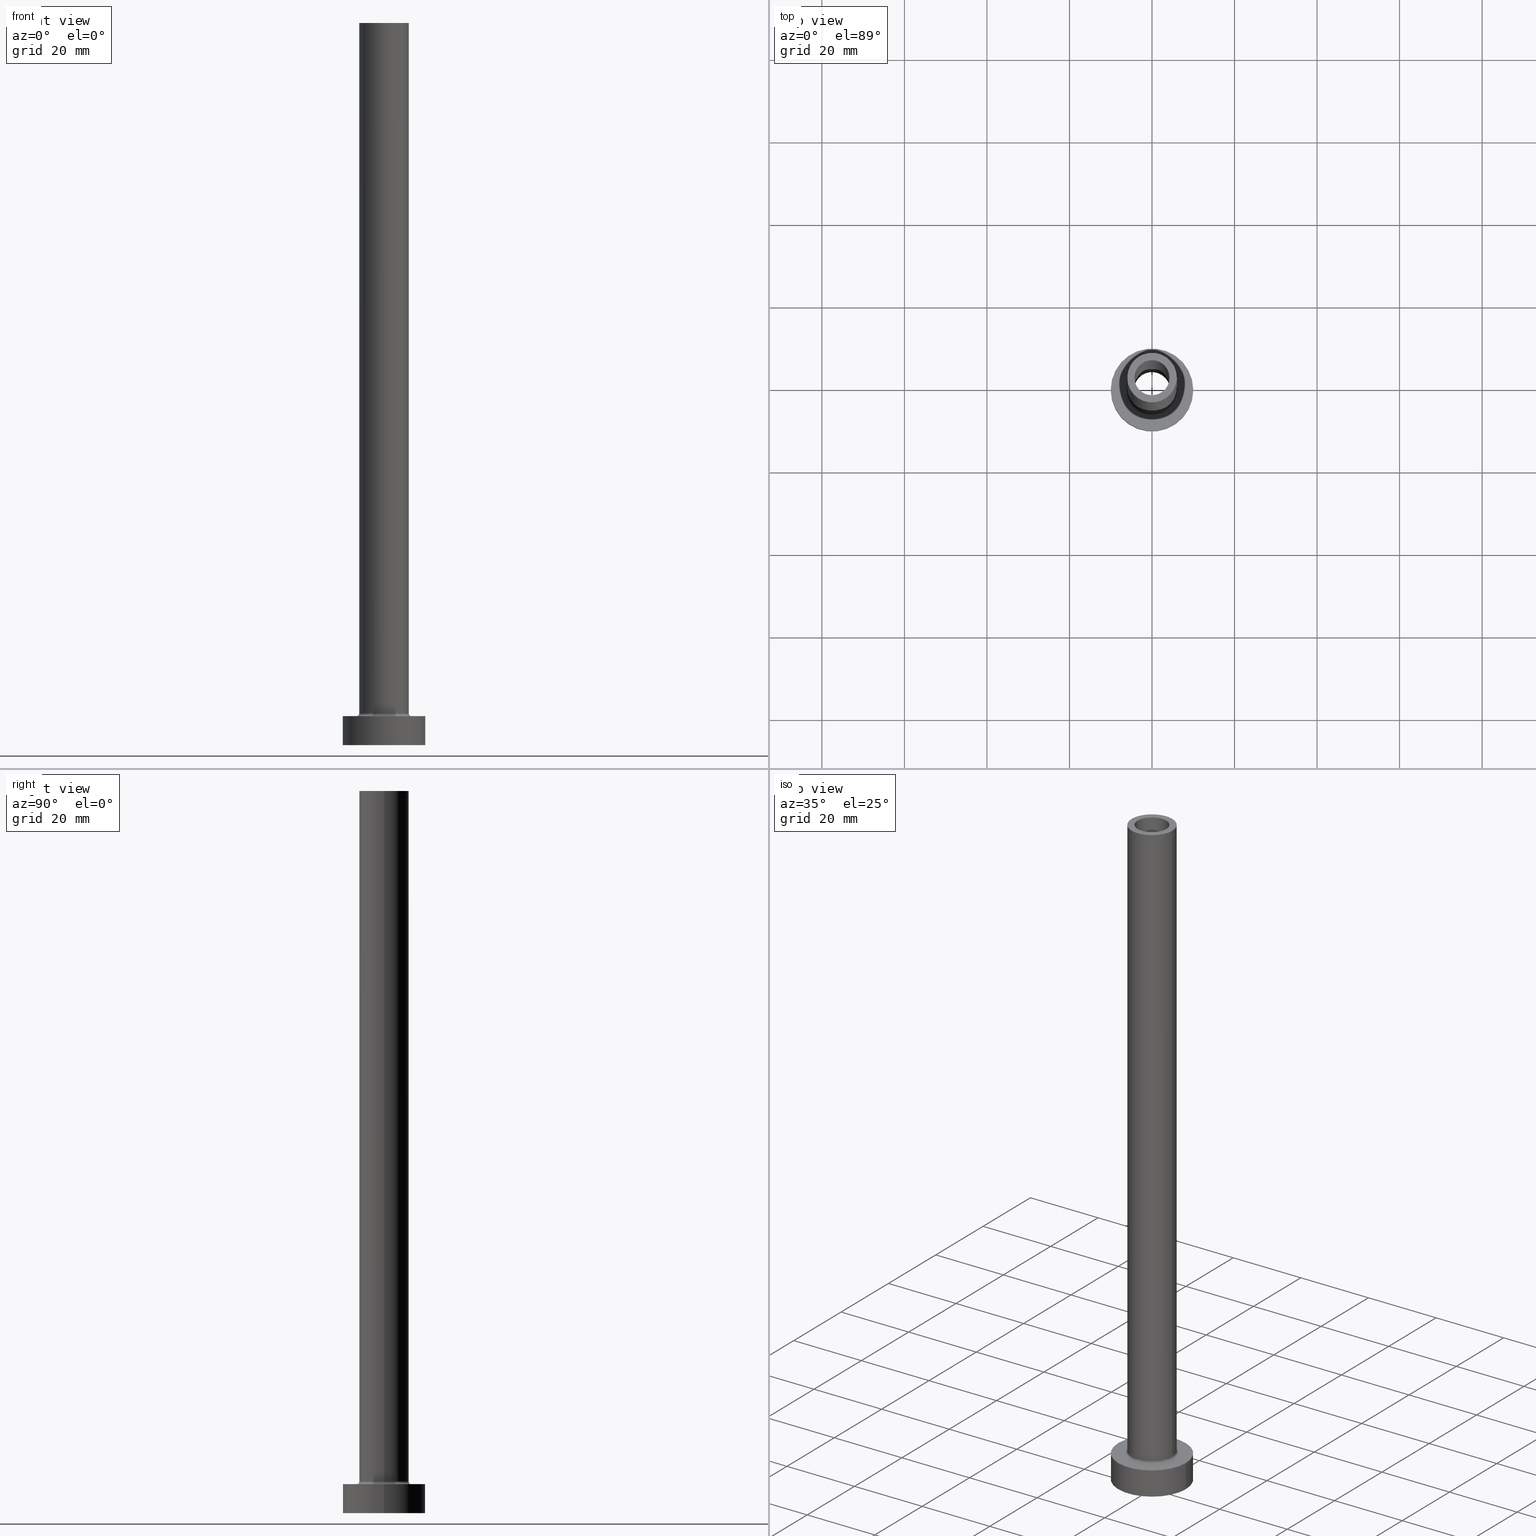
[diagram: canonical four-view strip — front | top / right | iso, engineering-drawing reading convention]
A machine part, canonical four-view strip (front | top / right | iso — engineering-drawing reading convention). The complete STEP part file that produces these views, byte-faithful:
ISO-10303-21;
HEADER;
FILE_DESCRIPTION (( 'STEP AP203' ),
    '1' );
FILE_NAME ('a372.STEP',
    '2023-02-13T11:58:05',
    ( '' ),
    ( '' ),
    'SwSTEP 2.0',
    'SolidWorks 2019',
    '' );
FILE_SCHEMA (( 'CONFIG_CONTROL_DESIGN' ));
ENDSEC;

DATA;
#1 = FACE_OUTER_BOUND ( 'NONE', #243, .T. ) ;
#2 = DIRECTION ( 'NONE',  ( 1.000000000000000000, 0.000000000000000000, 0.000000000000000000 ) ) ;
#3 = AXIS2_PLACEMENT_3D ( 'NONE', #280, #70, #314 ) ;
#4 = DIRECTION ( 'NONE',  ( 1.000000000000000000, 0.000000000000000000, -0.000000000000000000 ) ) ;
#5 = DIRECTION ( 'NONE',  ( 1.000000000000000000, 0.000000000000000000, 0.000000000000000000 ) ) ;
#6 = LOCAL_TIME ( 12, 58, 5.000000000000000000, #297 ) ;
#7 = CARTESIAN_POINT ( 'NONE',  ( -6.700000000000001066, 8.205133554287267548E-16, 7.000000000000006217 ) ) ;
#8 = LINE ( 'NONE', #156, #306 ) ;
#9 = AXIS2_PLACEMENT_3D ( 'NONE', #148, #425, #358 ) ;
#10 = CARTESIAN_POINT ( 'NONE',  ( 10.00000000000000000, 1.224646799147353256E-15, 7.000000000000000000 ) ) ;
#11 = AXIS2_PLACEMENT_3D ( 'NONE', #54, #368, #307 ) ;
#12 = EDGE_CURVE ( 'NONE', #376, #66, #420, .T. ) ;
#13 = CARTESIAN_POINT ( 'NONE',  ( 0.000000000000000000, 0.000000000000000000, 175.0000000000000284 ) ) ;
#14 = APPLICATION_PROTOCOL_DEFINITION ( 'international standard', 'config_control_design', 1994, #331 ) ;
#15 = AXIS2_PLACEMENT_3D ( 'NONE', #287, #321, #421 ) ;
#16 = CARTESIAN_POINT ( 'NONE',  ( 0.000000000000000000, 0.000000000000000000, 175.0000000000000284 ) ) ;
#17 = ORIENTED_EDGE ( 'NONE', *, *, #12, .F. ) ;
#18 = ORIENTED_EDGE ( 'NONE', *, *, #402, .T. ) ;
#19 = ORIENTED_EDGE ( 'NONE', *, *, #396, .F. ) ;
#20 = ORIENTED_EDGE ( 'NONE', *, *, #126, .F. ) ;
#21 = DATE_AND_TIME ( #302, #221 ) ;
#22 = ADVANCED_FACE ( 'NONE', ( #246 ), #68, .T. ) ;
#23 = EDGE_LOOP ( 'NONE', ( #230, #179 ) ) ;
#24 = ADVANCED_FACE ( 'NONE', ( #315 ), #111, .F. ) ;
#25 = EDGE_LOOP ( 'NONE', ( #378, #334, #232, #208 ) ) ;
#26 = EDGE_LOOP ( 'NONE', ( #443, #195, #106, #56 ) ) ;
#27 = DATE_AND_TIME ( #452, #185 ) ;
#28 = AXIS2_PLACEMENT_3D ( 'NONE', #337, #165, #298 ) ;
#29 = COORDINATED_UNIVERSAL_TIME_OFFSET ( 1, 0, .AHEAD. ) ;
#30 = ADVANCED_FACE ( 'NONE', ( #255, #77 ), #363, .T. ) ;
#31 = DATE_TIME_ROLE ( 'creation_date' ) ;
#32 = DIRECTION ( 'NONE',  ( -1.000000000000000000, 0.000000000000000000, 0.000000000000000000 ) ) ;
#33 = LOCAL_TIME ( 12, 58, 5.000000000000000000, #415 ) ;
#34 = AXIS2_PLACEMENT_3D ( 'NONE', #44, #153, #427 ) ;
#35 = ORIENTED_EDGE ( 'NONE', *, *, #430, .F. ) ;
#36 = DATE_TIME_ROLE ( 'classification_date' ) ;
#37 = AXIS2_PLACEMENT_3D ( 'NONE', #256, #110, #180 ) ;
#38 = CARTESIAN_POINT ( 'NONE',  ( -4.250000000000000000, 0.000000000000000000, 130.0000000000000000 ) ) ;
#39 = CARTESIAN_POINT ( 'NONE',  ( 0.000000000000000000, 0.000000000000000000, 7.700000000000012612 ) ) ;
#40 = DIRECTION ( 'NONE',  ( 1.224646799147353207E-16, 1.000000000000000000, -0.000000000000000000 ) ) ;
#41 = AXIS2_PLACEMENT_3D ( 'NONE', #39, #108, #47 ) ;
#42 = AXIS2_PLACEMENT_3D ( 'NONE', #190, #117, #4 ) ;
#43 = FACE_OUTER_BOUND ( 'NONE', #25, .T. ) ;
#44 = CARTESIAN_POINT ( 'NONE',  ( 6.700000000000001066, 0.000000000000000000, 7.700000000000012612 ) ) ;
#45 = CARTESIAN_POINT ( 'NONE',  ( 0.000000000000000000, 0.000000000000000000, 0.000000000000000000 ) ) ;
#46 =( NAMED_UNIT ( * ) PLANE_ANGLE_UNIT ( ) SI_UNIT ( $, .RADIAN. ) );
#47 = DIRECTION ( 'NONE',  ( 1.000000000000000000, 0.000000000000000000, 0.000000000000000000 ) ) ;
#48 = AXIS2_PLACEMENT_3D ( 'NONE', #225, #227, #326 ) ;
#49 = EDGE_CURVE ( 'NONE', #304, #55, #347, .T. ) ;
#50 = APPROVAL_STATUS ( 'not_yet_approved' ) ;
#51 = CIRCLE ( 'NONE', #28, 10.00000000000000000 ) ;
#52 = ORIENTED_EDGE ( 'NONE', *, *, #352, .T. ) ;
#53 = ORIENTED_EDGE ( 'NONE', *, *, #242, .F. ) ;
#54 = CARTESIAN_POINT ( 'NONE',  ( 0.000000000000000000, 0.000000000000000000, 175.0000000000000284 ) ) ;
#55 = VERTEX_POINT ( 'NONE', #222 ) ;
#56 = ORIENTED_EDGE ( 'NONE', *, *, #301, .F. ) ;
#57 = DIRECTION ( 'NONE',  ( -1.000000000000000000, 0.000000000000000000, 0.000000000000000000 ) ) ;
#58 = EDGE_CURVE ( 'NONE', #202, #345, #94, .T. ) ;
#59 = ORIENTED_EDGE ( 'NONE', *, *, #352, .F. ) ;
#60 = ADVANCED_FACE ( 'NONE', ( #323, #219 ), #146, .F. ) ;
#61 = ORIENTED_EDGE ( 'NONE', *, *, #58, .T. ) ;
#62 = PERSON_AND_ORGANIZATION ( #395, #199 ) ;
#63 = CC_DESIGN_DATE_AND_TIME_ASSIGNMENT ( #244, #31, ( #373 ) ) ;
#64 = ORIENTED_EDGE ( 'NONE', *, *, #237, .F. ) ;
#65 = DATE_AND_TIME ( #348, #33 ) ;
#66 = VERTEX_POINT ( 'NONE', #422 ) ;
#67 = APPROVAL_DATE_TIME ( #65, #183 ) ;
#68 = CYLINDRICAL_SURFACE ( 'NONE', #408, 10.00000000000000000 ) ;
#69 = ORIENTED_EDGE ( 'NONE', *, *, #418, .T. ) ;
#70 = DIRECTION ( 'NONE',  ( 0.000000000000000000, 0.000000000000000000, 1.000000000000000000 ) ) ;
#71 = ORIENTED_EDGE ( 'NONE', *, *, #264, .T. ) ;
#72 = CARTESIAN_POINT ( 'NONE',  ( 0.000000000000000000, 0.000000000000000000, 7.700000000000012612 ) ) ;
#73 = EDGE_LOOP ( 'NONE', ( #458, #414, #102, #305 ) ) ;
#74 = CARTESIAN_POINT ( 'NONE',  ( -10.00000000000000000, 0.000000000000000000, 0.000000000000000000 ) ) ;
#75 = CARTESIAN_POINT ( 'NONE',  ( 0.000000000000000000, 0.000000000000000000, 130.0000000000000000 ) ) ;
#76 = DIRECTION ( 'NONE',  ( 0.000000000000000000, 0.000000000000000000, 1.000000000000000000 ) ) ;
#77 = FACE_OUTER_BOUND ( 'NONE', #125, .T. ) ;
#78 = TOROIDAL_SURFACE ( 'NONE', #15, 6.700000000000001066, 0.6999999999999999556 ) ;
#79 = DIRECTION ( 'NONE',  ( 0.000000000000000000, 0.000000000000000000, 1.000000000000000000 ) ) ;
#80 = ADVANCED_FACE ( 'NONE', ( #292 ), #450, .F. ) ;
#81 = CARTESIAN_POINT ( 'NONE',  ( -10.00000000000000000, 0.000000000000000000, 7.000000000000000000 ) ) ;
#82 = DIRECTION ( 'NONE',  ( -0.000000000000000000, -0.000000000000000000, -1.000000000000000000 ) ) ;
#83 = CIRCLE ( 'NONE', #143, 4.400000000000000355 ) ;
#84 = CARTESIAN_POINT ( 'NONE',  ( -6.000000000000000888, 0.000000000000000000, 175.0000000000000284 ) ) ;
#85 = APPLICATION_PROTOCOL_DEFINITION ( 'international standard', 'config_control_design', 1994, #403 ) ;
#86 = DIRECTION ( 'NONE',  ( 0.000000000000000000, 0.000000000000000000, -1.000000000000000000 ) ) ;
#87 = ADVANCED_FACE ( 'NONE', ( #431 ), #460, .T. ) ;
#88 = CIRCLE ( 'NONE', #388, 4.400000000000000355 ) ;
#89 = ORIENTED_EDGE ( 'NONE', *, *, #390, .F. ) ;
#90 = ORIENTED_EDGE ( 'NONE', *, *, #317, .T. ) ;
#91 = DIRECTION ( 'NONE',  ( -0.000000000000000000, -0.000000000000000000, -1.000000000000000000 ) ) ;
#92 = VERTEX_POINT ( 'NONE', #397 ) ;
#93 = PERSON_AND_ORGANIZATION_ROLE ( 'design_owner' ) ;
#94 = CIRCLE ( 'NONE', #192, 4.400000000000000355 ) ;
#95 = VERTEX_POINT ( 'NONE', #81 ) ;
#96 = CARTESIAN_POINT ( 'NONE',  ( 0.000000000000000000, 0.000000000000000000, 0.000000000000000000 ) ) ;
#97 = AXIS2_PLACEMENT_3D ( 'NONE', #13, #229, #57 ) ;
#98 = VERTEX_POINT ( 'NONE', #398 ) ;
#99 = ORIENTED_EDGE ( 'NONE', *, *, #49, .F. ) ;
#100 = EDGE_CURVE ( 'NONE', #233, #92, #181, .T. ) ;
#101 = DIRECTION ( 'NONE',  ( 1.000000000000000000, 0.000000000000000000, 0.000000000000000000 ) ) ;
#102 = ORIENTED_EDGE ( 'NONE', *, *, #49, .T. ) ;
#103 = DIRECTION ( 'NONE',  ( 0.000000000000000000, 0.000000000000000000, -1.000000000000000000 ) ) ;
#104 = CIRCLE ( 'NONE', #364, 6.000000000000000888 ) ;
#105 = DIRECTION ( 'NONE',  ( 1.000000000000000000, 0.000000000000000000, 0.000000000000000000 ) ) ;
#106 = ORIENTED_EDGE ( 'NONE', *, *, #273, .T. ) ;
#107 = FACE_OUTER_BOUND ( 'NONE', #276, .T. ) ;
#108 = DIRECTION ( 'NONE',  ( 0.000000000000000000, 0.000000000000000000, 1.000000000000000000 ) ) ;
#109 = CIRCLE ( 'NONE', #426, 6.700000000000001066 ) ;
#110 = DIRECTION ( 'NONE',  ( 0.000000000000000000, 0.000000000000000000, 1.000000000000000000 ) ) ;
#111 = CYLINDRICAL_SURFACE ( 'NONE', #259, 4.400000000000000355 ) ;
#112 =( LENGTH_UNIT ( ) NAMED_UNIT ( * ) SI_UNIT ( .MILLI., .METRE. ) );
#113 = DIRECTION ( 'NONE',  ( -0.000000000000000000, -0.000000000000000000, -1.000000000000000000 ) ) ;
#114 = AXIS2_PLACEMENT_3D ( 'NONE', #459, #152, #318 ) ;
#115 = CARTESIAN_POINT ( 'NONE',  ( 0.000000000000000000, 0.000000000000000000, 0.000000000000000000 ) ) ;
#116 = EDGE_CURVE ( 'NONE', #120, #372, #215, .T. ) ;
#117 = DIRECTION ( 'NONE',  ( 0.000000000000000000, 0.000000000000000000, 1.000000000000000000 ) ) ;
#118 = CYLINDRICAL_SURFACE ( 'NONE', #97, 4.250000000000000000 ) ;
#119 = APPROVAL_PERSON_ORGANIZATION ( #62, #178, #262 ) ;
#120 = VERTEX_POINT ( 'NONE', #401 ) ;
#121 = ORIENTED_EDGE ( 'NONE', *, *, #286, .F. ) ;
#122 = AXIS2_PLACEMENT_3D ( 'NONE', #216, #40, #356 ) ;
#123 = DIRECTION ( 'NONE',  ( 0.000000000000000000, 0.000000000000000000, 1.000000000000000000 ) ) ;
#124 = AXIS2_PLACEMENT_3D ( 'NONE', #366, #123, #267 ) ;
#125 = EDGE_LOOP ( 'NONE', ( #346, #278 ) ) ;
#126 = EDGE_CURVE ( 'NONE', #345, #451, #8, .T. ) ;
#127 = ORIENTED_EDGE ( 'NONE', *, *, #390, .T. ) ;
#128 = CARTESIAN_POINT ( 'NONE',  ( 10.00000000000000000, 1.224646799147353256E-15, 7.000000000000000000 ) ) ;
#129 = UNCERTAINTY_MEASURE_WITH_UNIT (LENGTH_MEASURE( 1.000000000000000082E-05 ), #112, 'distance_accuracy_value', 'NONE');
#130 = ORIENTED_EDGE ( 'NONE', *, *, #439, .T. ) ;
#131 = ORIENTED_EDGE ( 'NONE', *, *, #193, .F. ) ;
#132 = CC_DESIGN_PERSON_AND_ORGANIZATION_ASSIGNMENT ( #411, #308, ( #235 ) ) ;
#133 = ORIENTED_EDGE ( 'NONE', *, *, #406, .T. ) ;
#134 = ORIENTED_EDGE ( 'NONE', *, *, #116, .T. ) ;
#135 = PERSON_AND_ORGANIZATION_ROLE ( 'creator' ) ;
#136 = DIRECTION ( 'NONE',  ( 1.000000000000000000, 0.000000000000000000, 0.000000000000000000 ) ) ;
#137 = ORIENTED_EDGE ( 'NONE', *, *, #198, .F. ) ;
#138 = APPROVAL_STATUS ( 'not_yet_approved' ) ;
#139 =( GEOMETRIC_REPRESENTATION_CONTEXT ( 3 ) GLOBAL_UNCERTAINTY_ASSIGNED_CONTEXT ( ( #129 ) ) GLOBAL_UNIT_ASSIGNED_CONTEXT ( ( #112, #46, #437 ) ) REPRESENTATION_CONTEXT ( 'NONE', 'WORKASPACE' ) );
#140 = SHAPE_DEFINITION_REPRESENTATION ( #355, #196 ) ;
#141 = ADVANCED_FACE ( 'NONE', ( #433 ), #118, .F. ) ;
#142 = DIRECTION ( 'NONE',  ( 0.000000000000000000, 0.000000000000000000, 1.000000000000000000 ) ) ;
#143 = AXIS2_PLACEMENT_3D ( 'NONE', #240, #253, #105 ) ;
#144 = PRODUCT ( 'a372', 'a372', '', ( #367 ) ) ;
#145 = LINE ( 'NONE', #218, #239 ) ;
#146 = PLANE ( 'NONE',  #42 ) ;
#147 = AXIS2_PLACEMENT_3D ( 'NONE', #164, #268, #168 ) ;
#148 = CARTESIAN_POINT ( 'NONE',  ( 0.000000000000000000, 0.000000000000000000, 175.0000000000000284 ) ) ;
#149 = CIRCLE ( 'NONE', #384, 4.250000000000000000 ) ;
#150 = CARTESIAN_POINT ( 'NONE',  ( -4.250000000000000000, 0.000000000000000000, 175.0000000000000284 ) ) ;
#151 = CARTESIAN_POINT ( 'NONE',  ( 0.000000000000000000, 0.000000000000000000, 142.4450793488832403 ) ) ;
#152 = DIRECTION ( 'NONE',  ( -0.000000000000000000, -0.000000000000000000, -1.000000000000000000 ) ) ;
#153 = DIRECTION ( 'NONE',  ( 0.000000000000000000, -1.000000000000000000, 0.000000000000000000 ) ) ;
#154 = DIRECTION ( 'NONE',  ( 1.000000000000000000, 0.000000000000000000, -0.000000000000000000 ) ) ;
#155 = ADVANCED_FACE ( 'NONE', ( #231 ), #374, .T. ) ;
#156 = CARTESIAN_POINT ( 'NONE',  ( -4.400000000000000355, 0.000000000000000000, 142.4450793488832403 ) ) ;
#157 = VECTOR ( 'NONE', #201, 1000.000000000000000 ) ;
#158 = PERSON_AND_ORGANIZATION_ROLE ( 'creator' ) ;
#159 = DIRECTION ( 'NONE',  ( 1.000000000000000000, 0.000000000000000000, 0.000000000000000000 ) ) ;
#160 = ORIENTED_EDGE ( 'NONE', *, *, #402, .F. ) ;
#161 = CC_DESIGN_PERSON_AND_ORGANIZATION_ASSIGNMENT ( #328, #158, ( #373 ) ) ;
#162 = ORIENTED_EDGE ( 'NONE', *, *, #126, .T. ) ;
#163 = CIRCLE ( 'NONE', #37, 6.000000000000000888 ) ;
#164 = CARTESIAN_POINT ( 'NONE',  ( 0.000000000000000000, 0.000000000000000000, 0.000000000000000000 ) ) ;
#165 = DIRECTION ( 'NONE',  ( 0.000000000000000000, 0.000000000000000000, 1.000000000000000000 ) ) ;
#166 = VERTEX_POINT ( 'NONE', #303 ) ;
#167 = EDGE_LOOP ( 'NONE', ( #447, #64, #209, #18 ) ) ;
#168 = DIRECTION ( 'NONE',  ( 1.000000000000000000, 0.000000000000000000, 0.000000000000000000 ) ) ;
#169 = CARTESIAN_POINT ( 'NONE',  ( 6.000000000000000888, 7.347880794884119736E-16, 175.0000000000000284 ) ) ;
#170 = VERTEX_POINT ( 'NONE', #10 ) ;
#171 = EDGE_CURVE ( 'NONE', #66, #166, #332, .T. ) ;
#172 = CARTESIAN_POINT ( 'NONE',  ( 0.000000000000000000, 0.000000000000000000, 7.000000000000000000 ) ) ;
#173 = AXIS2_PLACEMENT_3D ( 'NONE', #96, #309, #159 ) ;
#174 = CALENDAR_DATE ( 2023, 13, 2 ) ;
#175 = DIRECTION ( 'NONE',  ( 1.000000000000000000, 0.000000000000000000, 0.000000000000000000 ) ) ;
#176 = DESIGN_CONTEXT ( 'detailed design', #331, 'design' ) ;
#177 = EDGE_CURVE ( 'NONE', #202, #336, #409, .T. ) ;
#178 = APPROVAL ( #50, 'NEUR�EN�' ) ;
#179 = ORIENTED_EDGE ( 'NONE', *, *, #301, .T. ) ;
#180 = DIRECTION ( 'NONE',  ( 1.000000000000000000, 0.000000000000000000, 0.000000000000000000 ) ) ;
#181 = LINE ( 'NONE', #84, #417 ) ;
#182 = FACE_OUTER_BOUND ( 'NONE', #310, .T. ) ;
#183 = APPROVAL ( #138, 'NEUR�EN�' ) ;
#184 = DIRECTION ( 'NONE',  ( 1.000000000000000000, 0.000000000000000000, -0.000000000000000000 ) ) ;
#185 = LOCAL_TIME ( 12, 58, 5.000000000000000000, #381 ) ;
#186 = DIRECTION ( 'NONE',  ( 0.000000000000000000, 0.000000000000000000, 1.000000000000000000 ) ) ;
#187 = DIRECTION ( 'NONE',  ( 0.000000000000000000, 0.000000000000000000, 1.000000000000000000 ) ) ;
#188 = VECTOR ( 'NONE', #274, 1000.000000000000000 ) ;
#189 = CYLINDRICAL_SURFACE ( 'NONE', #9, 4.250000000000000000 ) ;
#190 = CARTESIAN_POINT ( 'NONE',  ( 0.000000000000000000, 0.000000000000000000, 130.0000000000000000 ) ) ;
#191 = CARTESIAN_POINT ( 'NONE',  ( 0.000000000000000000, 0.000000000000000000, 175.0000000000000284 ) ) ;
#192 = AXIS2_PLACEMENT_3D ( 'NONE', #75, #187, #288 ) ;
#193 = EDGE_CURVE ( 'NONE', #66, #376, #217, .T. ) ;
#194 = DIRECTION ( 'NONE',  ( 0.000000000000000000, 0.000000000000000000, -1.000000000000000000 ) ) ;
#195 = ORIENTED_EDGE ( 'NONE', *, *, #193, .T. ) ;
#196 = ADVANCED_BREP_SHAPE_REPRESENTATION ( 'a372', ( #295, #147 ), #139 ) ;
#197 = ORIENTED_EDGE ( 'NONE', *, *, #58, .F. ) ;
#198 = EDGE_CURVE ( 'NONE', #451, #336, #330, .T. ) ;
#199 = ORGANIZATION ( 'NEUR�EN�', 'NEUR�EN�', '' ) ;
#200 = EDGE_LOOP ( 'NONE', ( #440, #312, #90, #371 ) ) ;
#201 = DIRECTION ( 'NONE',  ( 0.000000000000000000, 0.000000000000000000, -1.000000000000000000 ) ) ;
#202 = VERTEX_POINT ( 'NONE', #236 ) ;
#203 = ORIENTED_EDGE ( 'NONE', *, *, #116, .F. ) ;
#204 = AXIS2_PLACEMENT_3D ( 'NONE', #45, #76, #325 ) ;
#205 = CARTESIAN_POINT ( 'NONE',  ( 4.250000000000000000, 5.204748896376250699E-16, 175.0000000000000284 ) ) ;
#206 = EDGE_LOOP ( 'NONE', ( #386, #61, #162, #344 ) ) ;
#207 = SECURITY_CLASSIFICATION_LEVEL ( 'unclassified' ) ;
#208 = ORIENTED_EDGE ( 'NONE', *, *, #273, .F. ) ;
#209 = ORIENTED_EDGE ( 'NONE', *, *, #100, .T. ) ;
#210 = CC_DESIGN_PERSON_AND_ORGANIZATION_ASSIGNMENT ( #279, #272, ( #263 ) ) ;
#211 = DIRECTION ( 'NONE',  ( 0.000000000000000000, 0.000000000000000000, 1.000000000000000000 ) ) ;
#212 = APPROVAL_STATUS ( 'not_yet_approved' ) ;
#213 = CIRCLE ( 'NONE', #3, 4.250000000000000000 ) ;
#214 = DIRECTION ( 'NONE',  ( -1.000000000000000000, 0.000000000000000000, 0.000000000000000000 ) ) ;
#215 = CIRCLE ( 'NONE', #48, 10.00000000000000000 ) ;
#216 = CARTESIAN_POINT ( 'NONE',  ( -6.700000000000001066, 8.205133554287267548E-16, 7.700000000000012612 ) ) ;
#217 = CIRCLE ( 'NONE', #277, 4.250000000000000000 ) ;
#218 = CARTESIAN_POINT ( 'NONE',  ( -10.00000000000000000, 0.000000000000000000, 7.000000000000000000 ) ) ;
#219 = FACE_OUTER_BOUND ( 'NONE', #438, .T. ) ;
#220 = DIRECTION ( 'NONE',  ( 0.000000000000000000, 0.000000000000000000, 1.000000000000000000 ) ) ;
#221 = LOCAL_TIME ( 12, 58, 5.000000000000000000, #342 ) ;
#222 = CARTESIAN_POINT ( 'NONE',  ( 6.700000000000001066, 0.000000000000000000, 7.000000000000006217 ) ) ;
#223 = FACE_BOUND ( 'NONE', #249, .T. ) ;
#224 = VECTOR ( 'NONE', #103, 1000.000000000000000 ) ;
#225 = CARTESIAN_POINT ( 'NONE',  ( 0.000000000000000000, 0.000000000000000000, 0.000000000000000000 ) ) ;
#226 = PERSON_AND_ORGANIZATION ( #395, #199 ) ;
#227 = DIRECTION ( 'NONE',  ( 0.000000000000000000, 0.000000000000000000, 1.000000000000000000 ) ) ;
#228 = AXIS2_PLACEMENT_3D ( 'NONE', #361, #394, #184 ) ;
#229 = DIRECTION ( 'NONE',  ( 0.000000000000000000, 0.000000000000000000, -1.000000000000000000 ) ) ;
#230 = ORIENTED_EDGE ( 'NONE', *, *, #266, .T. ) ;
#231 = FACE_OUTER_BOUND ( 'NONE', #200, .T. ) ;
#232 = ORIENTED_EDGE ( 'NONE', *, *, #266, .F. ) ;
#233 = VERTEX_POINT ( 'NONE', #343 ) ;
#234 = ORIENTED_EDGE ( 'NONE', *, *, #177, .T. ) ;
#235 = PRODUCT_DEFINITION_FORMATION_WITH_SPECIFIED_SOURCE ( 'LIBOVOLN�', '', #144, .NOT_KNOWN. ) ;
#236 = CARTESIAN_POINT ( 'NONE',  ( 4.400000000000000355, 5.388445916248354013E-16, 130.0000000000000000 ) ) ;
#237 = EDGE_CURVE ( 'NONE', #233, #98, #351, .T. ) ;
#238 = EDGE_CURVE ( 'NONE', #98, #304, #407, .T. ) ;
#239 = VECTOR ( 'NONE', #365, 1000.000000000000000 ) ;
#240 = CARTESIAN_POINT ( 'NONE',  ( 0.000000000000000000, 0.000000000000000000, 130.0000000000000000 ) ) ;
#241 = EDGE_LOOP ( 'NONE', ( #19, #445, #134, #89 ) ) ;
#242 = EDGE_CURVE ( 'NONE', #95, #170, #51, .T. ) ;
#243 = EDGE_LOOP ( 'NONE', ( #405, #53, #127, #130 ) ) ;
#244 = DATE_AND_TIME ( #434, #6 ) ;
#245 = FACE_OUTER_BOUND ( 'NONE', #206, .T. ) ;
#246 = FACE_OUTER_BOUND ( 'NONE', #241, .T. ) ;
#247 = EDGE_CURVE ( 'NONE', #170, #120, #449, .T. ) ;
#248 = CYLINDRICAL_SURFACE ( 'NONE', #341, 4.400000000000000355 ) ;
#249 = EDGE_LOOP ( 'NONE', ( #17, #131 ) ) ;
#250 = CARTESIAN_POINT ( 'NONE',  ( 0.000000000000000000, 0.000000000000000000, 7.000000000000000000 ) ) ;
#251 = CARTESIAN_POINT ( 'NONE',  ( 0.000000000000000000, 0.000000000000000000, 7.000000000000000000 ) ) ;
#252 = CC_DESIGN_DATE_AND_TIME_ASSIGNMENT ( #27, #36, ( #263 ) ) ;
#253 = DIRECTION ( 'NONE',  ( 0.000000000000000000, 0.000000000000000000, 1.000000000000000000 ) ) ;
#254 = CIRCLE ( 'NONE', #290, 6.000000000000000888 ) ;
#255 = FACE_BOUND ( 'NONE', #275, .T. ) ;
#256 = CARTESIAN_POINT ( 'NONE',  ( 0.000000000000000000, 0.000000000000000000, 175.0000000000000284 ) ) ;
#257 = DIRECTION ( 'NONE',  ( -1.000000000000000000, 0.000000000000000000, 0.000000000000000000 ) ) ;
#258 = DIRECTION ( 'NONE',  ( -1.000000000000000000, 0.000000000000000000, 0.000000000000000000 ) ) ;
#259 = AXIS2_PLACEMENT_3D ( 'NONE', #151, #86, #257 ) ;
#260 = CARTESIAN_POINT ( 'NONE',  ( -4.400000000000000355, 0.000000000000000000, 0.000000000000000000 ) ) ;
#261 = DIRECTION ( 'NONE',  ( -0.000000000000000000, -0.000000000000000000, -1.000000000000000000 ) ) ;
#262 = APPROVAL_ROLE ( '' ) ;
#263 = SECURITY_CLASSIFICATION ( '', '', #207 ) ;
#264 = EDGE_CURVE ( 'NONE', #369, #55, #109, .T. ) ;
#265 = ORIENTED_EDGE ( 'NONE', *, *, #430, .T. ) ;
#266 = EDGE_CURVE ( 'NONE', #410, #166, #149, .T. ) ;
#267 = DIRECTION ( 'NONE',  ( 1.000000000000000000, 0.000000000000000000, 0.000000000000000000 ) ) ;
#268 = DIRECTION ( 'NONE',  ( 0.000000000000000000, 0.000000000000000000, 1.000000000000000000 ) ) ;
#269 = DIRECTION ( 'NONE',  ( 1.000000000000000000, 0.000000000000000000, 0.000000000000000000 ) ) ;
#270 = APPROVAL_PERSON_ORGANIZATION ( #457, #183, #313 ) ;
#271 = AXIS2_PLACEMENT_3D ( 'NONE', #316, #142, #455 ) ;
#272 = PERSON_AND_ORGANIZATION_ROLE ( 'classification_officer' ) ;
#273 = EDGE_CURVE ( 'NONE', #376, #410, #349, .T. ) ;
#274 = DIRECTION ( 'NONE',  ( -0.000000000000000000, -0.000000000000000000, -1.000000000000000000 ) ) ;
#275 = EDGE_LOOP ( 'NONE', ( #436, #71 ) ) ;
#276 = EDGE_LOOP ( 'NONE', ( #338, #69 ) ) ;
#277 = AXIS2_PLACEMENT_3D ( 'NONE', #16, #442, #269 ) ;
#278 = ORIENTED_EDGE ( 'NONE', *, *, #396, .T. ) ;
#279 = PERSON_AND_ORGANIZATION ( #395, #199 ) ;
#280 = CARTESIAN_POINT ( 'NONE',  ( 0.000000000000000000, 0.000000000000000000, 130.0000000000000000 ) ) ;
#281 = CC_DESIGN_PERSON_AND_ORGANIZATION_ASSIGNMENT ( #283, #135, ( #235 ) ) ;
#282 = APPROVAL_PERSON_ORGANIZATION ( #377, #293, #350 ) ;
#283 = PERSON_AND_ORGANIZATION ( #395, #199 ) ;
#284 = DIRECTION ( 'NONE',  ( 0.000000000000000000, 0.000000000000000000, 1.000000000000000000 ) ) ;
#285 = CARTESIAN_POINT ( 'NONE',  ( 4.400000000000000355, 5.388445916248354013E-16, 0.000000000000000000 ) ) ;
#286 = EDGE_CURVE ( 'NONE', #55, #369, #404, .T. ) ;
#287 = CARTESIAN_POINT ( 'NONE',  ( 0.000000000000000000, 0.000000000000000000, 7.700000000000012612 ) ) ;
#288 = DIRECTION ( 'NONE',  ( 1.000000000000000000, 0.000000000000000000, 0.000000000000000000 ) ) ;
#289 = CYLINDRICAL_SURFACE ( 'NONE', #114, 10.00000000000000000 ) ;
#290 = AXIS2_PLACEMENT_3D ( 'NONE', #72, #324, #5 ) ;
#291 = PLANE ( 'NONE',  #400 ) ;
#292 = FACE_OUTER_BOUND ( 'NONE', #73, .T. ) ;
#293 = APPROVAL ( #212, 'NEUR�EN�' ) ;
#294 = CARTESIAN_POINT ( 'NONE',  ( 0.000000000000000000, 0.000000000000000000, 0.000000000000000000 ) ) ;
#295 = MANIFOLD_SOLID_BREP ( 'Odebrat vysunut�m4', #335 ) ;
#296 = DIRECTION ( 'NONE',  ( 0.000000000000000000, 0.000000000000000000, -1.000000000000000000 ) ) ;
#297 = COORDINATED_UNIVERSAL_TIME_OFFSET ( 1, 0, .AHEAD. ) ;
#298 = DIRECTION ( 'NONE',  ( 1.000000000000000000, 0.000000000000000000, 0.000000000000000000 ) ) ;
#299 = CARTESIAN_POINT ( 'NONE',  ( 4.400000000000000355, 5.388445916248354013E-16, 142.4450793488832403 ) ) ;
#300 = CIRCLE ( 'NONE', #375, 10.00000000000000000 ) ;
#301 = EDGE_CURVE ( 'NONE', #166, #410, #213, .T. ) ;
#302 = CALENDAR_DATE ( 2023, 13, 2 ) ;
#303 = CARTESIAN_POINT ( 'NONE',  ( 4.250000000000000000, 5.204748896376250699E-16, 130.0000000000000000 ) ) ;
#304 = VERTEX_POINT ( 'NONE', #456 ) ;
#305 = ORIENTED_EDGE ( 'NONE', *, *, #264, .F. ) ;
#306 = VECTOR ( 'NONE', #296, 1000.000000000000000 ) ;
#307 = DIRECTION ( 'NONE',  ( -1.000000000000000000, 0.000000000000000000, 0.000000000000000000 ) ) ;
#308 = PERSON_AND_ORGANIZATION_ROLE ( 'design_supplier' ) ;
#309 = DIRECTION ( 'NONE',  ( -0.000000000000000000, -0.000000000000000000, -1.000000000000000000 ) ) ;
#310 = EDGE_LOOP ( 'NONE', ( #160, #133, #121, #99 ) ) ;
#311 = PRODUCT_RELATED_PRODUCT_CATEGORY ( 'detail', '', ( #144 ) ) ;
#312 = ORIENTED_EDGE ( 'NONE', *, *, #238, .T. ) ;
#313 = APPROVAL_ROLE ( '' ) ;
#314 = DIRECTION ( 'NONE',  ( 1.000000000000000000, 0.000000000000000000, 0.000000000000000000 ) ) ;
#315 = FACE_OUTER_BOUND ( 'NONE', #340, .T. ) ;
#316 = CARTESIAN_POINT ( 'NONE',  ( 0.000000000000000000, 0.000000000000000000, 175.0000000000000284 ) ) ;
#317 = EDGE_CURVE ( 'NONE', #304, #92, #104, .T. ) ;
#318 = DIRECTION ( 'NONE',  ( -1.000000000000000000, 0.000000000000000000, 0.000000000000000000 ) ) ;
#319 = LOCAL_TIME ( 12, 58, 5.000000000000000000, #29 ) ;
#320 = FACE_BOUND ( 'NONE', #379, .T. ) ;
#321 = DIRECTION ( 'NONE',  ( 0.000000000000000000, 0.000000000000000000, 1.000000000000000000 ) ) ;
#322 = CIRCLE ( 'NONE', #122, 0.7000000000000000666 ) ;
#323 = FACE_BOUND ( 'NONE', #23, .T. ) ;
#324 = DIRECTION ( 'NONE',  ( 0.000000000000000000, 0.000000000000000000, 1.000000000000000000 ) ) ;
#325 = DIRECTION ( 'NONE',  ( 1.000000000000000000, 0.000000000000000000, -0.000000000000000000 ) ) ;
#326 = DIRECTION ( 'NONE',  ( 1.000000000000000000, 0.000000000000000000, 0.000000000000000000 ) ) ;
#327 = ADVANCED_FACE ( 'NONE', ( #245 ), #248, .F. ) ;
#328 = PERSON_AND_ORGANIZATION ( #395, #199 ) ;
#329 = CARTESIAN_POINT ( 'NONE',  ( 0.000000000000000000, 0.000000000000000000, 7.000000000000000000 ) ) ;
#330 = CIRCLE ( 'NONE', #173, 4.400000000000000355 ) ;
#331 = APPLICATION_CONTEXT ( 'configuration controlled 3d designs of mechanical parts and assemblies' ) ;
#332 = LINE ( 'NONE', #205, #157 ) ;
#333 = CC_DESIGN_APPROVAL ( #293, ( #263 ) ) ;
#334 = ORIENTED_EDGE ( 'NONE', *, *, #171, .T. ) ;
#335 = CLOSED_SHELL ( 'NONE', ( #399, #24, #432, #155, #22, #423, #30, #370, #87, #360, #80, #327, #60, #141 ) ) ;
#336 = VERTEX_POINT ( 'NONE', #285 ) ;
#337 = CARTESIAN_POINT ( 'NONE',  ( 0.000000000000000000, 0.000000000000000000, 7.000000000000000000 ) ) ;
#338 = ORIENTED_EDGE ( 'NONE', *, *, #237, .T. ) ;
#339 = CC_DESIGN_PERSON_AND_ORGANIZATION_ASSIGNMENT ( #226, #93, ( #144 ) ) ;
#340 = EDGE_LOOP ( 'NONE', ( #52, #234, #265, #20 ) ) ;
#341 = AXIS2_PLACEMENT_3D ( 'NONE', #353, #385, #32 ) ;
#342 = COORDINATED_UNIVERSAL_TIME_OFFSET ( 1, 0, .AHEAD. ) ;
#343 = CARTESIAN_POINT ( 'NONE',  ( -6.000000000000000888, 0.000000000000000000, 175.0000000000000284 ) ) ;
#344 = ORIENTED_EDGE ( 'NONE', *, *, #198, .T. ) ;
#345 = VERTEX_POINT ( 'NONE', #419 ) ;
#346 = ORIENTED_EDGE ( 'NONE', *, *, #242, .T. ) ;
#347 = CIRCLE ( 'NONE', #34, 0.7000000000000000666 ) ;
#348 = CALENDAR_DATE ( 2023, 13, 2 ) ;
#349 = LINE ( 'NONE', #382, #224 ) ;
#350 = APPROVAL_ROLE ( '' ) ;
#351 = CIRCLE ( 'NONE', #124, 6.000000000000000888 ) ;
#352 = EDGE_CURVE ( 'NONE', #345, #202, #83, .T. ) ;
#353 = CARTESIAN_POINT ( 'NONE',  ( 0.000000000000000000, 0.000000000000000000, 142.4450793488832403 ) ) ;
#354 = AXIS2_PLACEMENT_3D ( 'NONE', #191, #113, #258 ) ;
#355 = PRODUCT_DEFINITION_SHAPE ( 'NONE', 'NONE',  #373 ) ;
#356 = DIRECTION ( 'NONE',  ( -1.000000000000000000, 1.224646799147353454E-16, 0.000000000000000000 ) ) ;
#357 = VECTOR ( 'NONE', #194, 1000.000000000000000 ) ;
#358 = DIRECTION ( 'NONE',  ( -1.000000000000000000, 0.000000000000000000, 0.000000000000000000 ) ) ;
#359 = PLANE ( 'NONE',  #204 ) ;
#360 = ADVANCED_FACE ( 'NONE', ( #223, #107 ), #291, .T. ) ;
#361 = CARTESIAN_POINT ( 'NONE',  ( 0.000000000000000000, 0.000000000000000000, 7.000000000000000000 ) ) ;
#362 = DIRECTION ( 'NONE',  ( 1.000000000000000000, 0.000000000000000000, 0.000000000000000000 ) ) ;
#363 = PLANE ( 'NONE',  #228 ) ;
#364 = AXIS2_PLACEMENT_3D ( 'NONE', #416, #284, #101 ) ;
#365 = DIRECTION ( 'NONE',  ( -0.000000000000000000, -0.000000000000000000, -1.000000000000000000 ) ) ;
#366 = CARTESIAN_POINT ( 'NONE',  ( 0.000000000000000000, 0.000000000000000000, 175.0000000000000284 ) ) ;
#367 = MECHANICAL_CONTEXT ( 'NONE', #403, 'mechanical' ) ;
#368 = DIRECTION ( 'NONE',  ( -0.000000000000000000, -0.000000000000000000, -1.000000000000000000 ) ) ;
#369 = VERTEX_POINT ( 'NONE', #7 ) ;
#370 = ADVANCED_FACE ( 'NONE', ( #320, #389 ), #359, .F. ) ;
#371 = ORIENTED_EDGE ( 'NONE', *, *, #100, .F. ) ;
#372 = VERTEX_POINT ( 'NONE', #74 ) ;
#373 = PRODUCT_DEFINITION ( 'NEZN�M�', '', #235, #176 ) ;
#374 = CYLINDRICAL_SURFACE ( 'NONE', #11, 6.000000000000000888 ) ;
#375 = AXIS2_PLACEMENT_3D ( 'NONE', #115, #186, #2 ) ;
#376 = VERTEX_POINT ( 'NONE', #150 ) ;
#377 = PERSON_AND_ORGANIZATION ( #395, #199 ) ;
#378 = ORIENTED_EDGE ( 'NONE', *, *, #12, .T. ) ;
#379 = EDGE_LOOP ( 'NONE', ( #137, #35 ) ) ;
#380 = CC_DESIGN_SECURITY_CLASSIFICATION ( #263, ( #235 ) ) ;
#381 = COORDINATED_UNIVERSAL_TIME_OFFSET ( 1, 0, .AHEAD. ) ;
#382 = CARTESIAN_POINT ( 'NONE',  ( -4.250000000000000000, 0.000000000000000000, 175.0000000000000284 ) ) ;
#383 = DATE_AND_TIME ( #174, #319 ) ;
#384 = AXIS2_PLACEMENT_3D ( 'NONE', #387, #211, #175 ) ;
#385 = DIRECTION ( 'NONE',  ( 0.000000000000000000, 0.000000000000000000, -1.000000000000000000 ) ) ;
#386 = ORIENTED_EDGE ( 'NONE', *, *, #177, .F. ) ;
#387 = CARTESIAN_POINT ( 'NONE',  ( 0.000000000000000000, 0.000000000000000000, 130.0000000000000000 ) ) ;
#388 = AXIS2_PLACEMENT_3D ( 'NONE', #294, #82, #429 ) ;
#389 = FACE_OUTER_BOUND ( 'NONE', #453, .T. ) ;
#390 = EDGE_CURVE ( 'NONE', #95, #372, #145, .T. ) ;
#391 = AXIS2_PLACEMENT_3D ( 'NONE', #251, #79, #362 ) ;
#392 = CARTESIAN_POINT ( 'NONE',  ( 0.000000000000000000, 0.000000000000000000, 175.0000000000000284 ) ) ;
#393 = VECTOR ( 'NONE', #91, 1000.000000000000000 ) ;
#394 = DIRECTION ( 'NONE',  ( 0.000000000000000000, 0.000000000000000000, 1.000000000000000000 ) ) ;
#395 = PERSON ( 'NEUR�EN�', 'NEUR�EN�', 'NEUR�EN�', ('NEUR�EN�'), ('NEUR�EN�'), ('NEUR�EN�') ) ;
#396 = EDGE_CURVE ( 'NONE', #170, #95, #424, .T. ) ;
#397 = CARTESIAN_POINT ( 'NONE',  ( -6.000000000000000888, 0.000000000000000000, 7.700000000000012612 ) ) ;
#398 = CARTESIAN_POINT ( 'NONE',  ( 6.000000000000000888, 7.347880794884119736E-16, 175.0000000000000284 ) ) ;
#399 = ADVANCED_FACE ( 'NONE', ( #43 ), #189, .F. ) ;
#400 = AXIS2_PLACEMENT_3D ( 'NONE', #392, #220, #154 ) ;
#401 = CARTESIAN_POINT ( 'NONE',  ( 10.00000000000000000, 1.224646799147353256E-15, 0.000000000000000000 ) ) ;
#402 = EDGE_CURVE ( 'NONE', #92, #304, #254, .T. ) ;
#403 = APPLICATION_CONTEXT ( 'configuration controlled 3d designs of mechanical parts and assemblies' ) ;
#404 = CIRCLE ( 'NONE', #444, 6.700000000000001066 ) ;
#405 = ORIENTED_EDGE ( 'NONE', *, *, #247, .F. ) ;
#406 = EDGE_CURVE ( 'NONE', #92, #369, #322, .T. ) ;
#407 = LINE ( 'NONE', #169, #393 ) ;
#408 = AXIS2_PLACEMENT_3D ( 'NONE', #250, #413, #214 ) ;
#409 = LINE ( 'NONE', #299, #357 ) ;
#410 = VERTEX_POINT ( 'NONE', #38 ) ;
#411 = PERSON_AND_ORGANIZATION ( #395, #199 ) ;
#412 = DIRECTION ( 'NONE',  ( 1.000000000000000000, 0.000000000000000000, 0.000000000000000000 ) ) ;
#413 = DIRECTION ( 'NONE',  ( -0.000000000000000000, -0.000000000000000000, -1.000000000000000000 ) ) ;
#414 = ORIENTED_EDGE ( 'NONE', *, *, #317, .F. ) ;
#415 = COORDINATED_UNIVERSAL_TIME_OFFSET ( 1, 0, .AHEAD. ) ;
#416 = CARTESIAN_POINT ( 'NONE',  ( 0.000000000000000000, 0.000000000000000000, 7.700000000000012612 ) ) ;
#417 = VECTOR ( 'NONE', #261, 1000.000000000000000 ) ;
#418 = EDGE_CURVE ( 'NONE', #98, #233, #163, .T. ) ;
#419 = CARTESIAN_POINT ( 'NONE',  ( -4.400000000000000355, 0.000000000000000000, 130.0000000000000000 ) ) ;
#420 = CIRCLE ( 'NONE', #271, 4.250000000000000000 ) ;
#421 = DIRECTION ( 'NONE',  ( 1.000000000000000000, 0.000000000000000000, 0.000000000000000000 ) ) ;
#422 = CARTESIAN_POINT ( 'NONE',  ( 4.250000000000000000, 5.204748896376250699E-16, 175.0000000000000284 ) ) ;
#423 = ADVANCED_FACE ( 'NONE', ( #1 ), #289, .T. ) ;
#424 = CIRCLE ( 'NONE', #391, 10.00000000000000000 ) ;
#425 = DIRECTION ( 'NONE',  ( 0.000000000000000000, 0.000000000000000000, -1.000000000000000000 ) ) ;
#426 = AXIS2_PLACEMENT_3D ( 'NONE', #329, #435, #412 ) ;
#427 = DIRECTION ( 'NONE',  ( 0.000000000000000000, 0.000000000000000000, -1.000000000000000000 ) ) ;
#428 = CC_DESIGN_APPROVAL ( #178, ( #373 ) ) ;
#429 = DIRECTION ( 'NONE',  ( 1.000000000000000000, 0.000000000000000000, 0.000000000000000000 ) ) ;
#430 = EDGE_CURVE ( 'NONE', #336, #451, #88, .T. ) ;
#431 = FACE_OUTER_BOUND ( 'NONE', #167, .T. ) ;
#432 = ADVANCED_FACE ( 'NONE', ( #182 ), #78, .F. ) ;
#433 = FACE_OUTER_BOUND ( 'NONE', #26, .T. ) ;
#434 = CALENDAR_DATE ( 2023, 13, 2 ) ;
#435 = DIRECTION ( 'NONE',  ( -0.000000000000000000, -0.000000000000000000, -1.000000000000000000 ) ) ;
#436 = ORIENTED_EDGE ( 'NONE', *, *, #286, .T. ) ;
#437 =( NAMED_UNIT ( * ) SI_UNIT ( $, .STERADIAN. ) SOLID_ANGLE_UNIT ( ) );
#438 = EDGE_LOOP ( 'NONE', ( #59, #197 ) ) ;
#439 = EDGE_CURVE ( 'NONE', #372, #120, #300, .T. ) ;
#440 = ORIENTED_EDGE ( 'NONE', *, *, #418, .F. ) ;
#441 = APPROVAL_DATE_TIME ( #21, #178 ) ;
#442 = DIRECTION ( 'NONE',  ( 0.000000000000000000, 0.000000000000000000, 1.000000000000000000 ) ) ;
#443 = ORIENTED_EDGE ( 'NONE', *, *, #171, .F. ) ;
#444 = AXIS2_PLACEMENT_3D ( 'NONE', #172, #454, #136 ) ;
#445 = ORIENTED_EDGE ( 'NONE', *, *, #247, .T. ) ;
#446 = ORIENTED_EDGE ( 'NONE', *, *, #439, .F. ) ;
#447 = ORIENTED_EDGE ( 'NONE', *, *, #238, .F. ) ;
#448 = APPROVAL_DATE_TIME ( #383, #293 ) ;
#449 = LINE ( 'NONE', #128, #188 ) ;
#450 = TOROIDAL_SURFACE ( 'NONE', #41, 6.700000000000001066, 0.6999999999999999556 ) ;
#451 = VERTEX_POINT ( 'NONE', #260 ) ;
#452 = CALENDAR_DATE ( 2023, 13, 2 ) ;
#453 = EDGE_LOOP ( 'NONE', ( #446, #203 ) ) ;
#454 = DIRECTION ( 'NONE',  ( -0.000000000000000000, -0.000000000000000000, -1.000000000000000000 ) ) ;
#455 = DIRECTION ( 'NONE',  ( 1.000000000000000000, 0.000000000000000000, 0.000000000000000000 ) ) ;
#456 = CARTESIAN_POINT ( 'NONE',  ( 6.000000000000000888, 7.347880794884119736E-16, 7.700000000000012612 ) ) ;
#457 = PERSON_AND_ORGANIZATION ( #395, #199 ) ;
#458 = ORIENTED_EDGE ( 'NONE', *, *, #406, .F. ) ;
#459 = CARTESIAN_POINT ( 'NONE',  ( 0.000000000000000000, 0.000000000000000000, 7.000000000000000000 ) ) ;
#460 = CYLINDRICAL_SURFACE ( 'NONE', #354, 6.000000000000000888 ) ;
#461 = CC_DESIGN_APPROVAL ( #183, ( #235 ) ) ;
ENDSEC;
END-ISO-10303-21;
